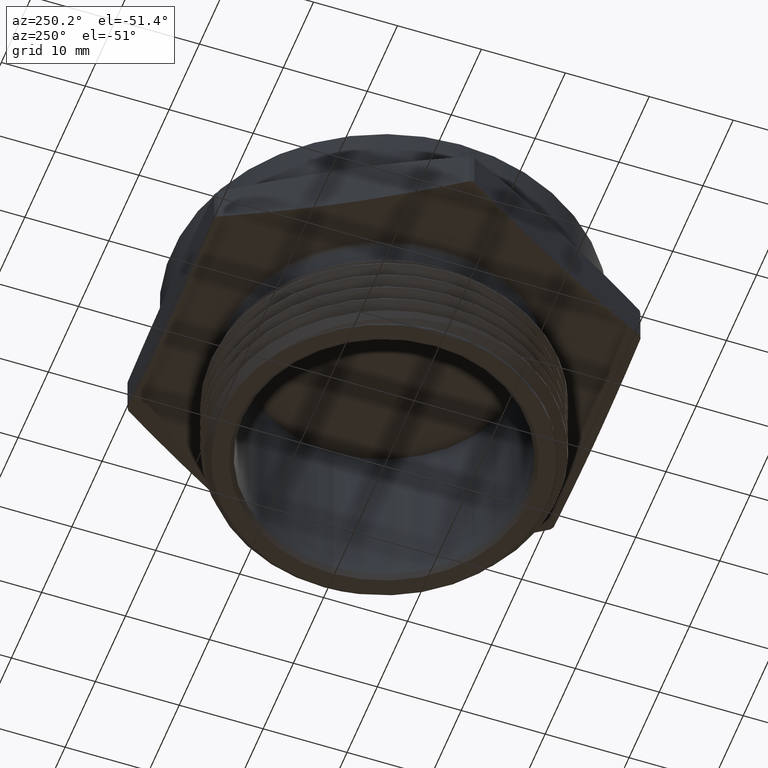
[diagram: clean part render]
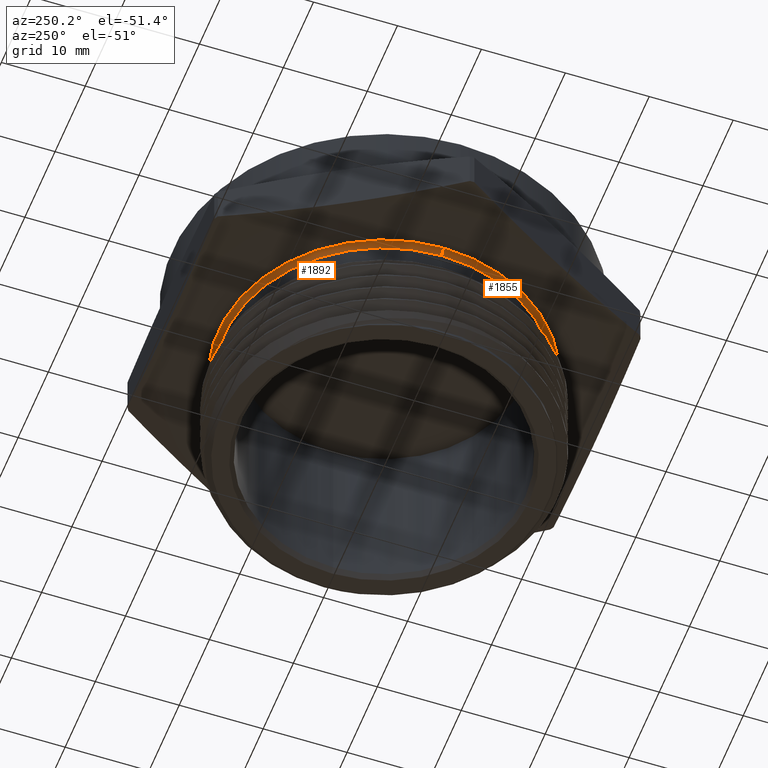
[diagram: same view with one multi-face feature highlighted, each face labeled with its STEP entity id]
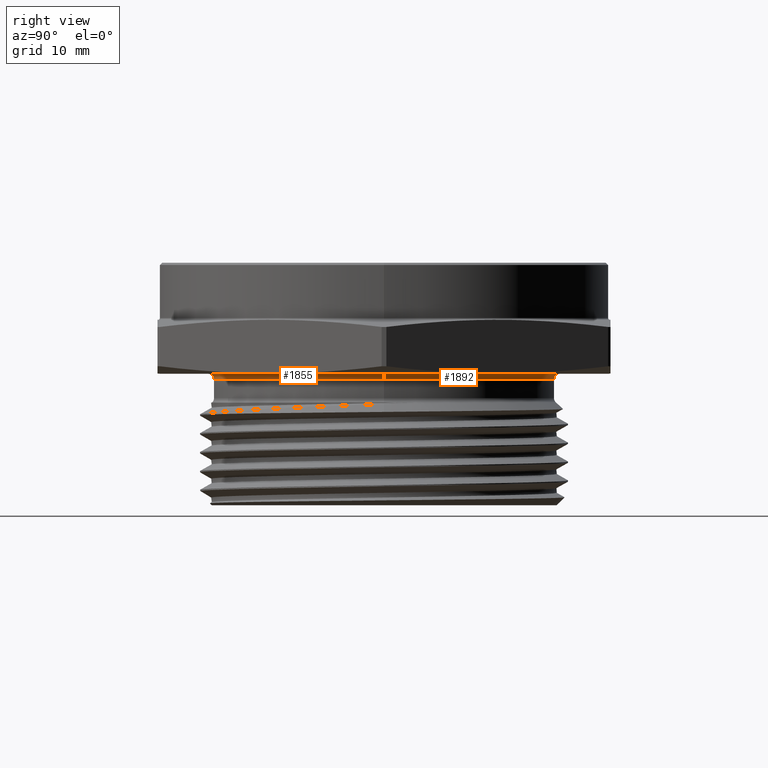
[diagram: same view with one multi-face feature highlighted, each face labeled with its STEP entity id]
A machine part, auxiliary view. The highlighted faces form ONE feature: a constant-radius fillet chain: 2 tangent blend faces with common blend radius 0.635 mm. The faces share edges in the B-rep.
A second angle (right view) of the same feature is appended — it is thin or edge-on in the first view.
Their STEP definitions:
[1] entity #1855 (Torus):
#99 = AXIS2_PLACEMENT_3D ( 'NONE', #3216, #3217, #3218 ) ;
#101 = AXIS2_PLACEMENT_3D ( 'NONE', #3222, #3223, #3224 ) ;
#103 = AXIS2_PLACEMENT_3D ( 'NONE', #3274, #3275, #3276 ) ;
#104 = AXIS2_PLACEMENT_3D ( 'NONE', #3278, #3279, #3280 ) ;
#146 = AXIS2_PLACEMENT_3D ( 'NONE', #3024, #3023, #3026 ) ;
#1179 = EDGE_CURVE ( 'NONE', #1386, #1400, #2591, .T. ) ;
#1181 = EDGE_CURVE ( 'NONE', #1422, #1400, #2590, .T. ) ;
#1184 = EDGE_CURVE ( 'NONE', #1410, #1422, #2596, .T. ) ;
#1185 = EDGE_CURVE ( 'NONE', #1410, #1386, #2595, .T. ) ;
#1284 = ORIENTED_EDGE ( 'NONE', *, *, #1181, .T. ) ;
#1285 = ORIENTED_EDGE ( 'NONE', *, *, #1184, .T. ) ;
#1289 = ORIENTED_EDGE ( 'NONE', *, *, #1185, .F. ) ;
#1297 = ORIENTED_EDGE ( 'NONE', *, *, #1179, .F. ) ;
#1386 = VERTEX_POINT ( 'NONE', #2961 ) ;
#1400 = VERTEX_POINT ( 'NONE', #2973 ) ;
#1410 = VERTEX_POINT ( 'NONE', #2983 ) ;
#1422 = VERTEX_POINT ( 'NONE', #2995 ) ;
#1604 = EDGE_LOOP ( 'NONE', ( #1289, #1285, #1284, #1297 ) ) ;
#1855 = ADVANCED_FACE ( 'NONE', ( #2695 ), #2682, .F. ) ;
#2590 = CIRCLE ( 'NONE', #101, 0.7534999999999999500 ) ;
#2591 = CIRCLE ( 'NONE', #99, 0.02500000000000001200 ) ;
#2595 = CIRCLE ( 'NONE', #104, 0.7784999999999998600 ) ;
#2596 = CIRCLE ( 'NONE', #103, 0.02500000000000000500 ) ;
#2682 = TOROIDAL_SURFACE ( 'NONE', #146, 0.7784999999999998600, 0.02500000000000000500 ) ;
#2695 = FACE_OUTER_BOUND ( 'NONE', #1604, .T. ) ;
#2961 = CARTESIAN_POINT ( 'NONE',  ( 0.7784999999999998600, 0.0000000000000000000, -3.201384367575308300E-017 ) ) ;
#2973 = CARTESIAN_POINT ( 'NONE',  ( 0.7534999999999999500, 0.0000000000000000000, -0.02500000000000004000 ) ) ;
#2983 = CARTESIAN_POINT ( 'NONE',  ( -0.7784999999999998600, 9.533875331362143900E-017, -3.201384367575308300E-017 ) ) ;
#2995 = CARTESIAN_POINT ( 'NONE',  ( -0.7534999999999999500, 9.227713631575306300E-017, -0.02500000000000004000 ) ) ;
#3023 = DIRECTION ( 'NONE',  ( -0.0000000000000000000, -0.0000000000000000000, 1.000000000000000000 ) ) ;
#3024 = CARTESIAN_POINT ( 'NONE',  ( 0.0000000000000000000, 0.0000000000000000000, -0.02500000000000003600 ) ) ;
#3026 = DIRECTION ( 'NONE',  ( 1.000000000000000000, 0.0000000000000000000, 0.0000000000000000000 ) ) ;
#3216 = CARTESIAN_POINT ( 'NONE',  ( 0.7784999999999998600, 0.0000000000000000000, -0.02500000000000003600 ) ) ;
#3217 = DIRECTION ( 'NONE',  ( 0.0000000000000000000, -1.000000000000000000, 0.0000000000000000000 ) ) ;
#3218 = DIRECTION ( 'NONE',  ( 0.0000000000000000000, 0.0000000000000000000, -1.000000000000000000 ) ) ;
#3222 = CARTESIAN_POINT ( 'NONE',  ( 0.0000000000000000000, 0.0000000000000000000, -0.02500000000000004000 ) ) ;
#3223 = DIRECTION ( 'NONE',  ( -0.0000000000000000000, -0.0000000000000000000, 1.000000000000000000 ) ) ;
#3224 = DIRECTION ( 'NONE',  ( 1.000000000000000000, 0.0000000000000000000, 0.0000000000000000000 ) ) ;
#3274 = CARTESIAN_POINT ( 'NONE',  ( -0.7784999999999998600, 9.533875331362143900E-017, -0.02500000000000003600 ) ) ;
#3275 = DIRECTION ( 'NONE',  ( 1.224646799147353200E-016, 1.000000000000000000, 0.0000000000000000000 ) ) ;
#3276 = DIRECTION ( 'NONE',  ( -1.000000000000000000, 1.224646799147351700E-016, 0.0000000000000000000 ) ) ;
#3278 = CARTESIAN_POINT ( 'NONE',  ( 0.0000000000000000000, 0.0000000000000000000, -3.414809992080329000E-017 ) ) ;
#3279 = DIRECTION ( 'NONE',  ( -0.0000000000000000000, -0.0000000000000000000, 1.000000000000000000 ) ) ;
#3280 = DIRECTION ( 'NONE',  ( 1.000000000000000000, 0.0000000000000000000, 0.0000000000000000000 ) ) ;
[2] entity #1892 (Torus):
#66 = EDGE_CURVE ( 'NONE', #1386, #1410, #2587, .T. ) ;
#96 = AXIS2_PLACEMENT_3D ( 'NONE', #2526, #2527, #2528 ) ;
#99 = AXIS2_PLACEMENT_3D ( 'NONE', #3216, #3217, #3218 ) ;
#102 = AXIS2_PLACEMENT_3D ( 'NONE', #3227, #3228, #3229 ) ;
#103 = AXIS2_PLACEMENT_3D ( 'NONE', #3274, #3275, #3276 ) ;
#182 = AXIS2_PLACEMENT_3D ( 'NONE', #571, #570, #573 ) ;
#570 = DIRECTION ( 'NONE',  ( -0.0000000000000000000, -0.0000000000000000000, 1.000000000000000000 ) ) ;
#571 = CARTESIAN_POINT ( 'NONE',  ( 0.0000000000000000000, 0.0000000000000000000, -0.02500000000000003600 ) ) ;
#573 = DIRECTION ( 'NONE',  ( 1.000000000000000000, 0.0000000000000000000, 0.0000000000000000000 ) ) ;
#1179 = EDGE_CURVE ( 'NONE', #1386, #1400, #2591, .T. ) ;
#1182 = EDGE_CURVE ( 'NONE', #1400, #1422, #2594, .T. ) ;
#1184 = EDGE_CURVE ( 'NONE', #1410, #1422, #2596, .T. ) ;
#1386 = VERTEX_POINT ( 'NONE', #2961 ) ;
#1400 = VERTEX_POINT ( 'NONE', #2973 ) ;
#1410 = VERTEX_POINT ( 'NONE', #2983 ) ;
#1422 = VERTEX_POINT ( 'NONE', #2995 ) ;
#1630 = EDGE_LOOP ( 'NONE', ( #1757, #1758, #1759, #1760 ) ) ;
#1757 = ORIENTED_EDGE ( 'NONE', *, *, #1184, .F. ) ;
#1758 = ORIENTED_EDGE ( 'NONE', *, *, #66, .F. ) ;
#1759 = ORIENTED_EDGE ( 'NONE', *, *, #1179, .T. ) ;
#1760 = ORIENTED_EDGE ( 'NONE', *, *, #1182, .T. ) ;
#1892 = ADVANCED_FACE ( 'NONE', ( #2760 ), #2759, .F. ) ;
#2526 = CARTESIAN_POINT ( 'NONE',  ( 0.0000000000000000000, 0.0000000000000000000, -3.414809992080329000E-017 ) ) ;
#2527 = DIRECTION ( 'NONE',  ( -0.0000000000000000000, -0.0000000000000000000, 1.000000000000000000 ) ) ;
#2528 = DIRECTION ( 'NONE',  ( 1.000000000000000000, 0.0000000000000000000, 0.0000000000000000000 ) ) ;
#2587 = CIRCLE ( 'NONE', #96, 0.7784999999999998600 ) ;
#2591 = CIRCLE ( 'NONE', #99, 0.02500000000000001200 ) ;
#2594 = CIRCLE ( 'NONE', #102, 0.7534999999999999500 ) ;
#2596 = CIRCLE ( 'NONE', #103, 0.02500000000000000500 ) ;
#2759 = TOROIDAL_SURFACE ( 'NONE', #182, 0.7784999999999998600, 0.02500000000000000500 ) ;
#2760 = FACE_OUTER_BOUND ( 'NONE', #1630, .T. ) ;
#2961 = CARTESIAN_POINT ( 'NONE',  ( 0.7784999999999998600, 0.0000000000000000000, -3.201384367575308300E-017 ) ) ;
#2973 = CARTESIAN_POINT ( 'NONE',  ( 0.7534999999999999500, 0.0000000000000000000, -0.02500000000000004000 ) ) ;
#2983 = CARTESIAN_POINT ( 'NONE',  ( -0.7784999999999998600, 9.533875331362143900E-017, -3.201384367575308300E-017 ) ) ;
#2995 = CARTESIAN_POINT ( 'NONE',  ( -0.7534999999999999500, 9.227713631575306300E-017, -0.02500000000000004000 ) ) ;
#3216 = CARTESIAN_POINT ( 'NONE',  ( 0.7784999999999998600, 0.0000000000000000000, -0.02500000000000003600 ) ) ;
#3217 = DIRECTION ( 'NONE',  ( 0.0000000000000000000, -1.000000000000000000, 0.0000000000000000000 ) ) ;
#3218 = DIRECTION ( 'NONE',  ( 0.0000000000000000000, 0.0000000000000000000, -1.000000000000000000 ) ) ;
#3227 = CARTESIAN_POINT ( 'NONE',  ( 0.0000000000000000000, 0.0000000000000000000, -0.02500000000000004000 ) ) ;
#3228 = DIRECTION ( 'NONE',  ( -0.0000000000000000000, -0.0000000000000000000, 1.000000000000000000 ) ) ;
#3229 = DIRECTION ( 'NONE',  ( 1.000000000000000000, 0.0000000000000000000, 0.0000000000000000000 ) ) ;
#3274 = CARTESIAN_POINT ( 'NONE',  ( -0.7784999999999998600, 9.533875331362143900E-017, -0.02500000000000003600 ) ) ;
#3275 = DIRECTION ( 'NONE',  ( 1.224646799147353200E-016, 1.000000000000000000, 0.0000000000000000000 ) ) ;
#3276 = DIRECTION ( 'NONE',  ( -1.000000000000000000, 1.224646799147351700E-016, 0.0000000000000000000 ) ) ;